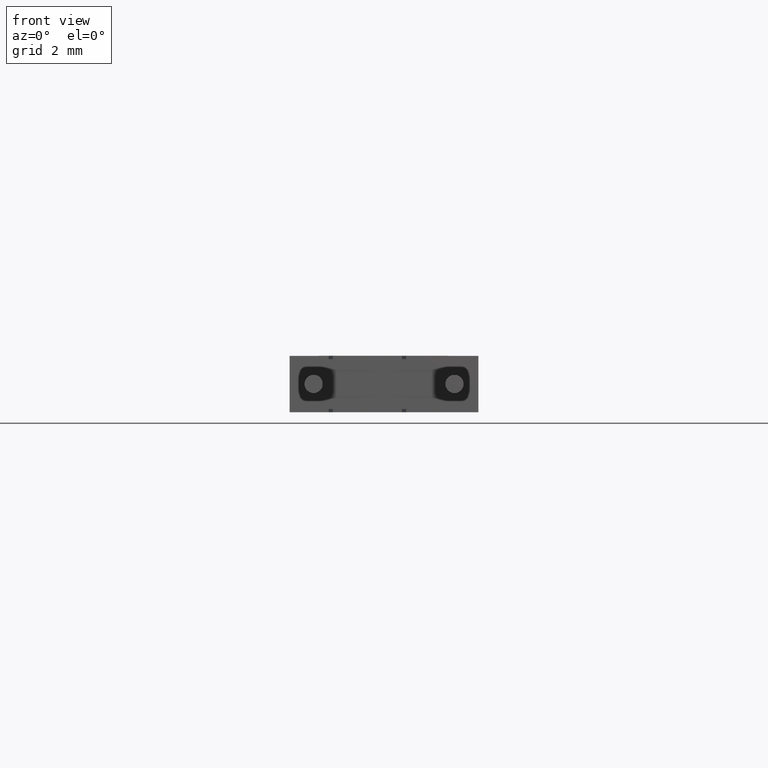
[diagram: clean part render]
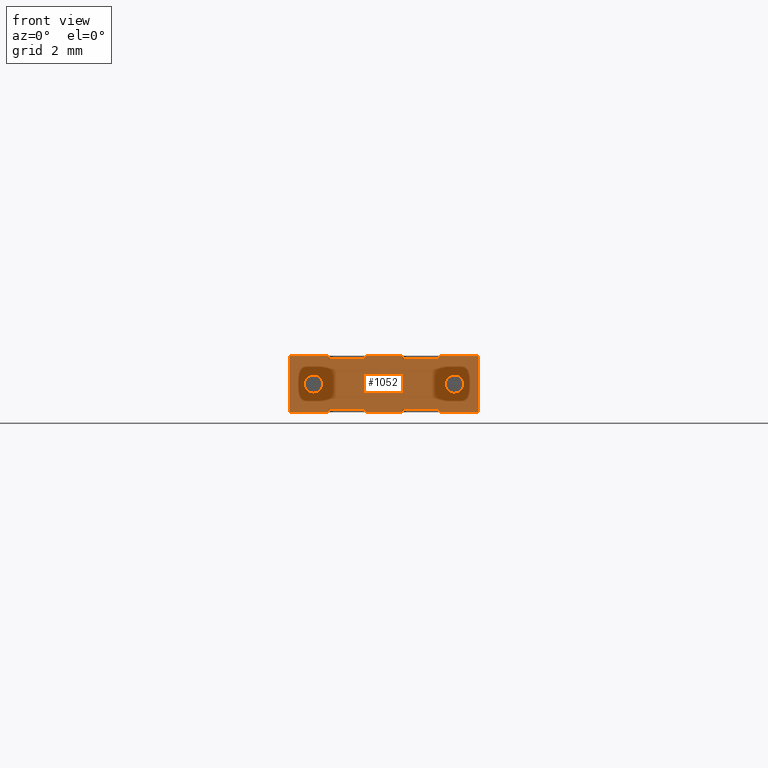
[diagram: same view with one face highlighted and labeled with its STEP entity id]
A machine part, front view. The second image highlights one B-rep face of the part: STEP entity #1052.
In plain terms, the highlighted planar face has unit normal (0, 1, 0).
Its self-contained STEP definition (entity closure, byte-faithful):
#5 = EDGE_CURVE ( 'NONE', #831, #1526, #380, .T. ) ;
#20 = CARTESIAN_POINT ( 'NONE',  ( 2.711100000000000100, 1.660069968584194800E-016, 1.886000000000000100 ) ) ;
#50 = AXIS2_PLACEMENT_3D ( 'NONE', #3194, #2213, #2176 ) ;
#91 = CARTESIAN_POINT ( 'NONE',  ( 0.0000000000000000000, 0.0000000000000000000, 0.0000000000000000000 ) ) ;
#112 = VECTOR ( 'NONE', #1738, 1000.000000000000000 ) ;
#143 = DIRECTION ( 'NONE',  ( 0.0000000000000000000, 0.0000000000000000000, 1.000000000000000000 ) ) ;
#160 = VECTOR ( 'NONE', #1642, 1000.000000000000000 ) ;
#175 = VERTEX_POINT ( 'NONE', #20 ) ;
#187 = ORIENTED_EDGE ( 'NONE', *, *, #1648, .T. ) ;
#221 = CIRCLE ( 'NONE', #3015, 0.3250000000000000100 ) ;
#233 = EDGE_LOOP ( 'NONE', ( #2905, #1047, #3227, #1482, #1013, #2231, #187, #2912, #328, #1934, #496, #1191, #1331, #2463, #2125, #673, #2248, #284, #345, #518 ) ) ;
#245 = CARTESIAN_POINT ( 'NONE',  ( 0.0000000000000000000, 0.0000000000000000000, 2.000000000000000000 ) ) ;
#257 = VERTEX_POINT ( 'NONE', #1690 ) ;
#262 = VERTEX_POINT ( 'NONE', #2431 ) ;
#272 = VECTOR ( 'NONE', #618, 1000.000000000000000 ) ;
#284 = ORIENTED_EDGE ( 'NONE', *, *, #5, .F. ) ;
#293 = CARTESIAN_POINT ( 'NONE',  ( 3.988900000000000100, 1.660069968584194800E-016, 0.1140000000000000000 ) ) ;
#294 = EDGE_CURVE ( 'NONE', #1927, #1409, #2758, .T. ) ;
#308 = CIRCLE ( 'NONE', #50, 0.3250000000000000100 ) ;
#314 = VERTEX_POINT ( 'NONE', #1183 ) ;
#319 = CARTESIAN_POINT ( 'NONE',  ( 0.8500000000000000900, 0.0000000000000000000, 1.325000000000000200 ) ) ;
#328 = ORIENTED_EDGE ( 'NONE', *, *, #2412, .F. ) ;
#345 = ORIENTED_EDGE ( 'NONE', *, *, #525, .T. ) ;
#353 = LINE ( 'NONE', #887, #272 ) ;
#369 = VERTEX_POINT ( 'NONE', #1425 ) ;
#380 = LINE ( 'NONE', #1279, #2849 ) ;
#382 = CARTESIAN_POINT ( 'NONE',  ( 0.0000000000000000000, 0.0000000000000000000, 0.0000000000000000000 ) ) ;
#389 = CARTESIAN_POINT ( 'NONE',  ( 0.8500000000000000900, 0.0000000000000000000, 0.6750000000000002700 ) ) ;
#400 = DIRECTION ( 'NONE',  ( -1.000000000000000000, -6.123233995736766000E-017, 0.0000000000000000000 ) ) ;
#431 = LINE ( 'NONE', #1644, #1817 ) ;
#441 = VECTOR ( 'NONE', #2859, 1000.000000000000000 ) ;
#470 = EDGE_CURVE ( 'NONE', #2373, #3039, #2795, .T. ) ;
#496 = ORIENTED_EDGE ( 'NONE', *, *, #704, .F. ) ;
#518 = ORIENTED_EDGE ( 'NONE', *, *, #3111, .T. ) ;
#525 = EDGE_CURVE ( 'NONE', #831, #1320, #802, .T. ) ;
#539 = CARTESIAN_POINT ( 'NONE',  ( 5.850000000000000500, 0.0000000000000000000, 0.6750000000000002700 ) ) ;
#574 = VECTOR ( 'NONE', #400, 1000.000000000000000 ) ;
#581 = CARTESIAN_POINT ( 'NONE',  ( 5.850000000000000500, 0.0000000000000000000, 1.325000000000000200 ) ) ;
#583 = DIRECTION ( 'NONE',  ( 1.000000000000000000, -6.123233995736766000E-017, 0.0000000000000000000 ) ) ;
#587 = EDGE_LOOP ( 'NONE', ( #1353, #1078 ) ) ;
#600 = DIRECTION ( 'NONE',  ( 0.0000000000000000000, 0.0000000000000000000, 1.000000000000000000 ) ) ;
#618 = DIRECTION ( 'NONE',  ( 0.0000000000000000000, 0.0000000000000000000, -1.000000000000000000 ) ) ;
#622 = LINE ( 'NONE', #293, #1440 ) ;
#645 = EDGE_CURVE ( 'NONE', #175, #2962, #2791, .T. ) ;
#649 = CARTESIAN_POINT ( 'NONE',  ( 0.8500000000000000900, 0.0000000000000000000, 1.000000000000000200 ) ) ;
#673 = ORIENTED_EDGE ( 'NONE', *, *, #645, .T. ) ;
#704 = EDGE_CURVE ( 'NONE', #1280, #2915, #1827, .T. ) ;
#706 = CARTESIAN_POINT ( 'NONE',  ( 0.0000000000000000000, 0.0000000000000000000, 2.000000000000000000 ) ) ;
#723 = CARTESIAN_POINT ( 'NONE',  ( 0.0000000000000000000, 0.0000000000000000000, 0.0000000000000000000 ) ) ;
#741 = VECTOR ( 'NONE', #1364, 1000.000000000000000 ) ;
#799 = DIRECTION ( 'NONE',  ( 1.000000000000000000, 0.0000000000000000000, 0.0000000000000000000 ) ) ;
#802 = LINE ( 'NONE', #706, #2335 ) ;
#817 = LINE ( 'NONE', #2836, #741 ) ;
#831 = VERTEX_POINT ( 'NONE', #245 ) ;
#887 = CARTESIAN_POINT ( 'NONE',  ( 5.314000000000000100, 8.486802318091159900E-017, 0.1140000000000000000 ) ) ;
#903 = LINE ( 'NONE', #956, #2659 ) ;
#910 = VECTOR ( 'NONE', #970, 1000.000000000000000 ) ;
#954 = CARTESIAN_POINT ( 'NONE',  ( 5.314000000000000100, 8.486802318091159900E-017, 1.886000000000000100 ) ) ;
#956 = CARTESIAN_POINT ( 'NONE',  ( 1.386000000000000100, 8.486802318091159900E-017, 0.1140000000000000000 ) ) ;
#970 = DIRECTION ( 'NONE',  ( 1.000000000000000000, -6.123233995736766000E-017, -0.0000000000000000000 ) ) ;
#992 = EDGE_CURVE ( 'NONE', #2962, #1526, #2788, .T. ) ;
#1001 = LINE ( 'NONE', #2168, #3179 ) ;
#1013 = ORIENTED_EDGE ( 'NONE', *, *, #1776, .F. ) ;
#1047 = ORIENTED_EDGE ( 'NONE', *, *, #2201, .F. ) ;
#1049 = CARTESIAN_POINT ( 'NONE',  ( 1.386000000000000100, 8.486802318091159900E-017, 1.886000000000000100 ) ) ;
#1052 = ADVANCED_FACE ( 'NONE', ( #2243, #3102, #3021 ), #1119, .F. ) ;
#1057 = VERTEX_POINT ( 'NONE', #1370 ) ;
#1067 = CARTESIAN_POINT ( 'NONE',  ( 3.988900000000000100, 1.660069968584194800E-016, 1.886000000000000100 ) ) ;
#1078 = ORIENTED_EDGE ( 'NONE', *, *, #1995, .T. ) ;
#1112 = CARTESIAN_POINT ( 'NONE',  ( 1.386000000000000100, 8.486802318091159900E-017, 1.886000000000000100 ) ) ;
#1119 = PLANE ( 'NONE',  #2826 ) ;
#1142 = DIRECTION ( 'NONE',  ( 0.0000000000000000000, -0.0000000000000000000, 1.000000000000000000 ) ) ;
#1150 = DIRECTION ( 'NONE',  ( 1.000000000000000000, 0.0000000000000000000, 0.0000000000000000000 ) ) ;
#1175 = VERTEX_POINT ( 'NONE', #1201 ) ;
#1183 = CARTESIAN_POINT ( 'NONE',  ( 5.314000000000000100, 0.0000000000000000000, 0.1139999999999999500 ) ) ;
#1191 = ORIENTED_EDGE ( 'NONE', *, *, #2450, .F. ) ;
#1194 = ORIENTED_EDGE ( 'NONE', *, *, #294, .F. ) ;
#1201 = CARTESIAN_POINT ( 'NONE',  ( 6.700000000000000200, 0.0000000000000000000, 2.000000000000000000 ) ) ;
#1214 = DIRECTION ( 'NONE',  ( 1.000000000000000000, 0.0000000000000000000, 0.0000000000000000000 ) ) ;
#1227 = DIRECTION ( 'NONE',  ( -0.0000000000000000000, 1.000000000000000000, -0.0000000000000000000 ) ) ;
#1241 = VECTOR ( 'NONE', #799, 1000.000000000000000 ) ;
#1244 = VECTOR ( 'NONE', #3081, 1000.000000000000000 ) ;
#1270 = EDGE_CURVE ( 'NONE', #2915, #1175, #1001, .T. ) ;
#1275 = LINE ( 'NONE', #1395, #1244 ) ;
#1279 = CARTESIAN_POINT ( 'NONE',  ( 0.0000000000000000000, 0.0000000000000000000, 2.000000000000000000 ) ) ;
#1280 = VERTEX_POINT ( 'NONE', #2673 ) ;
#1306 = DIRECTION ( 'NONE',  ( 0.0000000000000000000, 0.0000000000000000000, 1.000000000000000000 ) ) ;
#1320 = VERTEX_POINT ( 'NONE', #1351 ) ;
#1331 = ORIENTED_EDGE ( 'NONE', *, *, #1559, .T. ) ;
#1351 = CARTESIAN_POINT ( 'NONE',  ( 0.0000000000000000000, 0.0000000000000000000, 0.0000000000000000000 ) ) ;
#1352 = DIRECTION ( 'NONE',  ( 0.0000000000000000000, 0.0000000000000000000, -1.000000000000000000 ) ) ;
#1353 = ORIENTED_EDGE ( 'NONE', *, *, #470, .T. ) ;
#1364 = DIRECTION ( 'NONE',  ( 0.0000000000000000000, 0.0000000000000000000, -1.000000000000000000 ) ) ;
#1370 = CARTESIAN_POINT ( 'NONE',  ( 3.988900000000000100, 0.0000000000000000000, 0.0000000000000000000 ) ) ;
#1395 = CARTESIAN_POINT ( 'NONE',  ( 3.988900000000000100, 1.660069968584194800E-016, 1.886000000000000100 ) ) ;
#1396 = VERTEX_POINT ( 'NONE', #2354 ) ;
#1409 = VERTEX_POINT ( 'NONE', #319 ) ;
#1425 = CARTESIAN_POINT ( 'NONE',  ( 6.700000000000000200, 0.0000000000000000000, 0.0000000000000000000 ) ) ;
#1440 = VECTOR ( 'NONE', #1352, 1000.000000000000000 ) ;
#1482 = ORIENTED_EDGE ( 'NONE', *, *, #1697, .T. ) ;
#1526 = VERTEX_POINT ( 'NONE', #2872 ) ;
#1559 = EDGE_CURVE ( 'NONE', #1765, #257, #1275, .T. ) ;
#1612 = EDGE_CURVE ( 'NONE', #175, #1900, #431, .T. ) ;
#1642 = DIRECTION ( 'NONE',  ( 1.000000000000000000, 0.0000000000000000000, 0.0000000000000000000 ) ) ;
#1644 = CARTESIAN_POINT ( 'NONE',  ( 2.711100000000000100, 1.660069968584194800E-016, 1.886000000000000100 ) ) ;
#1647 = CARTESIAN_POINT ( 'NONE',  ( 2.711100000000000100, 1.660069968584194800E-016, 2.000000000000000000 ) ) ;
#1648 = EDGE_CURVE ( 'NONE', #314, #262, #353, .T. ) ;
#1650 = CARTESIAN_POINT ( 'NONE',  ( 0.0000000000000000000, 0.0000000000000000000, 2.000000000000000000 ) ) ;
#1659 = CARTESIAN_POINT ( 'NONE',  ( 6.700000000000000200, 0.0000000000000000000, 2.000000000000000000 ) ) ;
#1690 = CARTESIAN_POINT ( 'NONE',  ( 3.988900000000000100, 1.660069968584194800E-016, 2.000000000000000000 ) ) ;
#1697 = EDGE_CURVE ( 'NONE', #3233, #1057, #2860, .T. ) ;
#1700 = CARTESIAN_POINT ( 'NONE',  ( 2.711100000000000100, 1.660069968584194800E-016, 0.0000000000000000000 ) ) ;
#1701 = AXIS2_PLACEMENT_3D ( 'NONE', #649, #2391, #1713 ) ;
#1713 = DIRECTION ( 'NONE',  ( 0.0000000000000000000, 0.0000000000000000000, 1.000000000000000000 ) ) ;
#1738 = DIRECTION ( 'NONE',  ( 1.000000000000000000, 0.0000000000000000000, 0.0000000000000000000 ) ) ;
#1754 = LINE ( 'NONE', #3082, #574 ) ;
#1765 = VERTEX_POINT ( 'NONE', #1067 ) ;
#1776 = EDGE_CURVE ( 'NONE', #1396, #1057, #622, .T. ) ;
#1787 = VECTOR ( 'NONE', #583, 1000.000000000000000 ) ;
#1817 = VECTOR ( 'NONE', #600, 1000.000000000000000 ) ;
#1827 = LINE ( 'NONE', #2651, #1911 ) ;
#1836 = VERTEX_POINT ( 'NONE', #2580 ) ;
#1875 = DIRECTION ( 'NONE',  ( 0.0000000000000000000, 1.000000000000000000, 0.0000000000000000000 ) ) ;
#1879 = EDGE_CURVE ( 'NONE', #262, #369, #3087, .T. ) ;
#1900 = VERTEX_POINT ( 'NONE', #1647 ) ;
#1911 = VECTOR ( 'NONE', #1991, 1000.000000000000000 ) ;
#1927 = VERTEX_POINT ( 'NONE', #389 ) ;
#1934 = ORIENTED_EDGE ( 'NONE', *, *, #1270, .F. ) ;
#1991 = DIRECTION ( 'NONE',  ( 0.0000000000000000000, 0.0000000000000000000, 1.000000000000000000 ) ) ;
#1992 = DIRECTION ( 'NONE',  ( 1.000000000000000000, 0.0000000000000000000, 0.0000000000000000000 ) ) ;
#1995 = EDGE_CURVE ( 'NONE', #3039, #2373, #308, .T. ) ;
#2075 = VERTEX_POINT ( 'NONE', #2941 ) ;
#2125 = ORIENTED_EDGE ( 'NONE', *, *, #1612, .F. ) ;
#2154 = VECTOR ( 'NONE', #2609, 1000.000000000000000 ) ;
#2168 = CARTESIAN_POINT ( 'NONE',  ( 0.0000000000000000000, 0.0000000000000000000, 2.000000000000000000 ) ) ;
#2176 = DIRECTION ( 'NONE',  ( 0.0000000000000000000, 0.0000000000000000000, -1.000000000000000000 ) ) ;
#2177 = EDGE_CURVE ( 'NONE', #1836, #3233, #817, .T. ) ;
#2181 = AXIS2_PLACEMENT_3D ( 'NONE', #2464, #1227, #2959 ) ;
#2194 = VECTOR ( 'NONE', #1150, 1000.000000000000000 ) ;
#2201 = EDGE_CURVE ( 'NONE', #1836, #3168, #1754, .T. ) ;
#2213 = DIRECTION ( 'NONE',  ( -0.0000000000000000000, 1.000000000000000000, -0.0000000000000000000 ) ) ;
#2231 = ORIENTED_EDGE ( 'NONE', *, *, #3175, .T. ) ;
#2232 = LINE ( 'NONE', #1659, #2154 ) ;
#2243 = FACE_BOUND ( 'NONE', #587, .T. ) ;
#2248 = ORIENTED_EDGE ( 'NONE', *, *, #992, .T. ) ;
#2254 = EDGE_CURVE ( 'NONE', #1409, #1927, #221, .T. ) ;
#2335 = VECTOR ( 'NONE', #3156, 1000.000000000000000 ) ;
#2354 = CARTESIAN_POINT ( 'NONE',  ( 3.988900000000000100, 0.0000000000000000000, 0.1139999999999999500 ) ) ;
#2373 = VERTEX_POINT ( 'NONE', #581 ) ;
#2383 = CARTESIAN_POINT ( 'NONE',  ( 0.8500000000000000900, 0.0000000000000000000, 1.000000000000000200 ) ) ;
#2384 = EDGE_CURVE ( 'NONE', #1900, #257, #2473, .T. ) ;
#2391 = DIRECTION ( 'NONE',  ( -0.0000000000000000000, -1.000000000000000000, -0.0000000000000000000 ) ) ;
#2393 = EDGE_LOOP ( 'NONE', ( #2482, #1194 ) ) ;
#2412 = EDGE_CURVE ( 'NONE', #1175, #369, #2232, .T. ) ;
#2431 = CARTESIAN_POINT ( 'NONE',  ( 5.314000000000000100, 8.486802318091159900E-017, 0.0000000000000000000 ) ) ;
#2437 = LINE ( 'NONE', #2833, #1787 ) ;
#2450 = EDGE_CURVE ( 'NONE', #1765, #1280, #3238, .T. ) ;
#2463 = ORIENTED_EDGE ( 'NONE', *, *, #2384, .F. ) ;
#2464 = CARTESIAN_POINT ( 'NONE',  ( 5.850000000000000500, 0.0000000000000000000, 1.000000000000000200 ) ) ;
#2473 = LINE ( 'NONE', #2842, #1241 ) ;
#2482 = ORIENTED_EDGE ( 'NONE', *, *, #2254, .F. ) ;
#2580 = CARTESIAN_POINT ( 'NONE',  ( 2.711100000000000100, 0.0000000000000000000, 0.1139999999999999500 ) ) ;
#2607 = EDGE_CURVE ( 'NONE', #3168, #2075, #903, .T. ) ;
#2609 = DIRECTION ( 'NONE',  ( -0.0000000000000000000, -0.0000000000000000000, -1.000000000000000000 ) ) ;
#2623 = CARTESIAN_POINT ( 'NONE',  ( 1.386000000000000100, 0.0000000000000000000, 0.1139999999999999500 ) ) ;
#2627 = DIRECTION ( 'NONE',  ( -0.0000000000000000000, -1.000000000000000000, -0.0000000000000000000 ) ) ;
#2651 = CARTESIAN_POINT ( 'NONE',  ( 5.314000000000000100, 8.486802318091159900E-017, 1.886000000000000100 ) ) ;
#2659 = VECTOR ( 'NONE', #2973, 1000.000000000000000 ) ;
#2673 = CARTESIAN_POINT ( 'NONE',  ( 5.314000000000000100, 8.486802318091159900E-017, 1.886000000000000100 ) ) ;
#2718 = VECTOR ( 'NONE', #1306, 1000.000000000000000 ) ;
#2758 = CIRCLE ( 'NONE', #1701, 0.3250000000000000100 ) ;
#2788 = LINE ( 'NONE', #1049, #2718 ) ;
#2791 = LINE ( 'NONE', #1112, #441 ) ;
#2793 = CARTESIAN_POINT ( 'NONE',  ( 5.314000000000000900, 1.084202172485504400E-016, 2.000000000000000000 ) ) ;
#2795 = CIRCLE ( 'NONE', #2181, 0.3250000000000000100 ) ;
#2826 = AXIS2_PLACEMENT_3D ( 'NONE', #1650, #1875, #1142 ) ;
#2833 = CARTESIAN_POINT ( 'NONE',  ( 5.314000000000000100, 8.486802318091159900E-017, 0.1140000000000000000 ) ) ;
#2836 = CARTESIAN_POINT ( 'NONE',  ( 2.711100000000000100, 1.660069968584194800E-016, 0.1140000000000000000 ) ) ;
#2842 = CARTESIAN_POINT ( 'NONE',  ( 0.0000000000000000000, 0.0000000000000000000, 2.000000000000000000 ) ) ;
#2849 = VECTOR ( 'NONE', #1992, 1000.000000000000000 ) ;
#2859 = DIRECTION ( 'NONE',  ( -1.000000000000000000, -6.123233995736766000E-017, -0.0000000000000000000 ) ) ;
#2860 = LINE ( 'NONE', #723, #112 ) ;
#2861 = LINE ( 'NONE', #91, #160 ) ;
#2872 = CARTESIAN_POINT ( 'NONE',  ( 1.386000000000000100, 0.0000000000000000000, 2.000000000000000000 ) ) ;
#2905 = ORIENTED_EDGE ( 'NONE', *, *, #2607, .F. ) ;
#2912 = ORIENTED_EDGE ( 'NONE', *, *, #1879, .T. ) ;
#2915 = VERTEX_POINT ( 'NONE', #2793 ) ;
#2941 = CARTESIAN_POINT ( 'NONE',  ( 1.386000000000000300, -2.710505431213761100E-017, 0.0000000000000000000 ) ) ;
#2959 = DIRECTION ( 'NONE',  ( 0.0000000000000000000, 0.0000000000000000000, -1.000000000000000000 ) ) ;
#2962 = VERTEX_POINT ( 'NONE', #3218 ) ;
#2973 = DIRECTION ( 'NONE',  ( 0.0000000000000000000, 0.0000000000000000000, -1.000000000000000000 ) ) ;
#3015 = AXIS2_PLACEMENT_3D ( 'NONE', #2383, #2627, #143 ) ;
#3021 = FACE_BOUND ( 'NONE', #2393, .T. ) ;
#3039 = VERTEX_POINT ( 'NONE', #539 ) ;
#3081 = DIRECTION ( 'NONE',  ( 0.0000000000000000000, 0.0000000000000000000, 1.000000000000000000 ) ) ;
#3082 = CARTESIAN_POINT ( 'NONE',  ( 1.386000000000000100, 8.486802318091159900E-017, 0.1140000000000000000 ) ) ;
#3087 = LINE ( 'NONE', #382, #2194 ) ;
#3102 = FACE_OUTER_BOUND ( 'NONE', #233, .T. ) ;
#3111 = EDGE_CURVE ( 'NONE', #1320, #2075, #2861, .T. ) ;
#3156 = DIRECTION ( 'NONE',  ( -0.0000000000000000000, -0.0000000000000000000, -1.000000000000000000 ) ) ;
#3168 = VERTEX_POINT ( 'NONE', #2623 ) ;
#3175 = EDGE_CURVE ( 'NONE', #1396, #314, #2437, .T. ) ;
#3179 = VECTOR ( 'NONE', #1214, 1000.000000000000000 ) ;
#3194 = CARTESIAN_POINT ( 'NONE',  ( 5.850000000000000500, 0.0000000000000000000, 1.000000000000000200 ) ) ;
#3218 = CARTESIAN_POINT ( 'NONE',  ( 1.386000000000000100, 8.486802318091159900E-017, 1.886000000000000100 ) ) ;
#3227 = ORIENTED_EDGE ( 'NONE', *, *, #2177, .T. ) ;
#3233 = VERTEX_POINT ( 'NONE', #1700 ) ;
#3238 = LINE ( 'NONE', #954, #910 ) ;